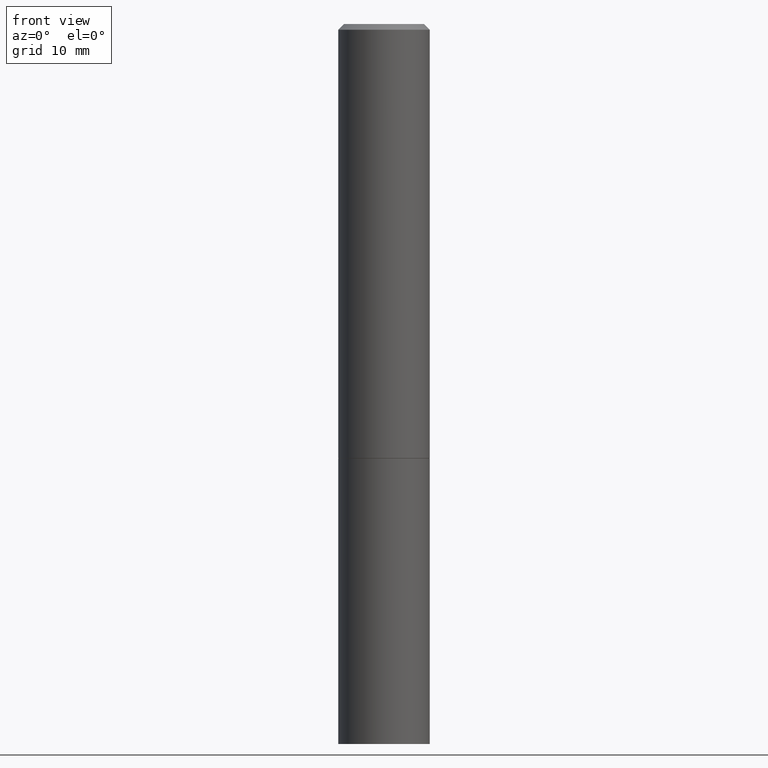
[diagram: clean part render]
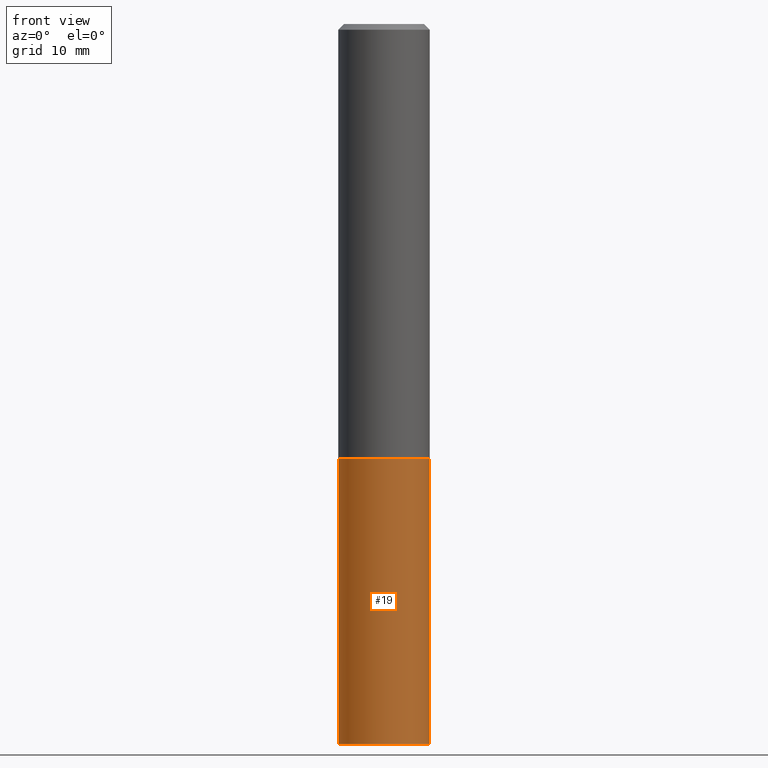
[diagram: same view with one face highlighted and labeled with its STEP entity id]
A machine part, front view. The second image highlights one B-rep face of the part: STEP entity #19.
In plain terms, the highlighted cylindrical surface (partial cylindrical patch) has radius 4.0005 mm, axis along (-0, 0, 1).
Its self-contained STEP definition (entity closure, byte-faithful):
#19 = ADVANCED_FACE ( 'NONE', ( #342 ), #229, .T. ) ;
#32 = DIRECTION ( 'NONE',  ( -2.445468806185136877E-29, 3.491481338843145188E-15, 1.000000000000000000 ) ) ;
#35 = LINE ( 'NONE', #86, #214 ) ;
#44 = DIRECTION ( 'NONE',  ( -2.445468806185136597E-29, 3.491481338843145583E-15, 1.000000000000000000 ) ) ;
#47 = DIRECTION ( 'NONE',  ( 1.000000000000000000, -6.982962677686268288E-15, 0.000000000000000000 ) ) ;
#55 = ORIENTED_EDGE ( 'NONE', *, *, #152, .T. ) ;
#74 = DIRECTION ( 'NONE',  ( -2.445468806185136877E-29, 3.491481338843145188E-15, 1.000000000000000000 ) ) ;
#80 = VERTEX_POINT ( 'NONE', #290 ) ;
#81 = VERTEX_POINT ( 'NONE', #117 ) ;
#86 = CARTESIAN_POINT ( 'NONE',  ( 0.1575000000000000011, -1.099816621735586889E-15, 7.679978421878598033E-30 ) ) ;
#89 = CIRCLE ( 'NONE', #233, 0.1575000000000000011 ) ;
#97 = EDGE_CURVE ( 'NONE', #81, #362, #35, .T. ) ;
#99 = AXIS2_PLACEMENT_3D ( 'NONE', #185, #44, #47 ) ;
#117 = CARTESIAN_POINT ( 'NONE',  ( 0.1575000000000000011, -9.759737786468242027E-15, -2.480300000000000171 ) ) ;
#121 = DIRECTION ( 'NONE',  ( -2.445468806185136597E-29, 3.491481338843145583E-15, 1.000000000000000000 ) ) ;
#135 = ORIENTED_EDGE ( 'NONE', *, *, #287, .F. ) ;
#152 = EDGE_CURVE ( 'NONE', #80, #81, #89, .T. ) ;
#169 = AXIS2_PLACEMENT_3D ( 'NONE', #292, #201, #205 ) ;
#178 = CARTESIAN_POINT ( 'NONE',  ( 6.065496279980994755E-29, -8.659921164732655335E-15, -2.480300000000000171 ) ) ;
#185 = CARTESIAN_POINT ( 'NONE',  ( 3.658421334052965286E-29, -5.223256082909346937E-15, -1.496000000000000441 ) ) ;
#190 = EDGE_LOOP ( 'NONE', ( #135, #55, #279, #257 ) ) ;
#201 = DIRECTION ( 'NONE',  ( -2.445468806185136597E-29, 3.491481338843145583E-15, 1.000000000000000000 ) ) ;
#205 = DIRECTION ( 'NONE',  ( 1.000000000000000000, -6.982962677686265922E-15, 4.876176775795935232E-29 ) ) ;
#214 = VECTOR ( 'NONE', #32, 39.37007874015748143 ) ;
#219 = CARTESIAN_POINT ( 'NONE',  ( 0.1575000000000000011, -6.323072704644934417E-15, -1.496000000000000441 ) ) ;
#221 = VECTOR ( 'NONE', #74, 39.37007874015748143 ) ;
#229 = CYLINDRICAL_SURFACE ( 'NONE', #169, 0.1575000000000000011 ) ;
#233 = AXIS2_PLACEMENT_3D ( 'NONE', #178, #121, #264 ) ;
#244 = CARTESIAN_POINT ( 'NONE',  ( -0.1575000000000000011, -5.822483814998842744E-15, -1.496000000000000441 ) ) ;
#257 = ORIENTED_EDGE ( 'NONE', *, *, #280, .F. ) ;
#264 = DIRECTION ( 'NONE',  ( 1.000000000000000000, -6.982962677686261977E-15, 0.000000000000000000 ) ) ;
#277 = VERTEX_POINT ( 'NONE', #244 ) ;
#279 = ORIENTED_EDGE ( 'NONE', *, *, #97, .T. ) ;
#280 = EDGE_CURVE ( 'NONE', #277, #362, #329, .T. ) ;
#287 = EDGE_CURVE ( 'NONE', #80, #277, #331, .T. ) ;
#290 = CARTESIAN_POINT ( 'NONE',  ( -0.1575000000000000011, -5.822483814998842744E-15, -2.480300000000000171 ) ) ;
#292 = CARTESIAN_POINT ( 'NONE',  ( 0.000000000000000000, 0.000000000000000000, 0.000000000000000000 ) ) ;
#328 = CARTESIAN_POINT ( 'NONE',  ( -0.1575000000000000011, 1.119104808822157801E-15, -7.747322767151475583E-30 ) ) ;
#329 = CIRCLE ( 'NONE', #99, 0.1575000000000000011 ) ;
#331 = LINE ( 'NONE', #328, #221 ) ;
#342 = FACE_OUTER_BOUND ( 'NONE', #190, .T. ) ;
#362 = VERTEX_POINT ( 'NONE', #219 ) ;